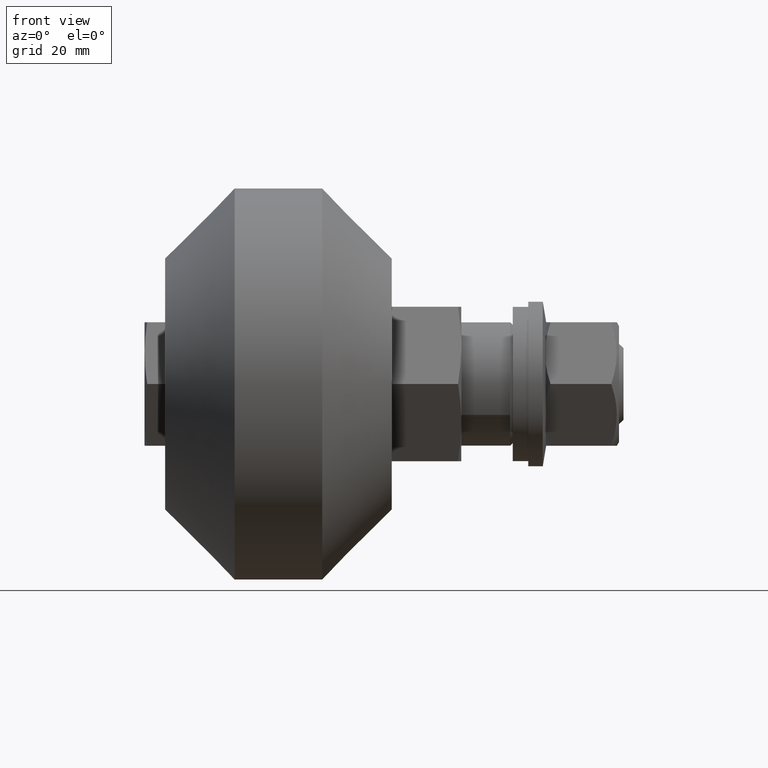
[diagram: clean part render]
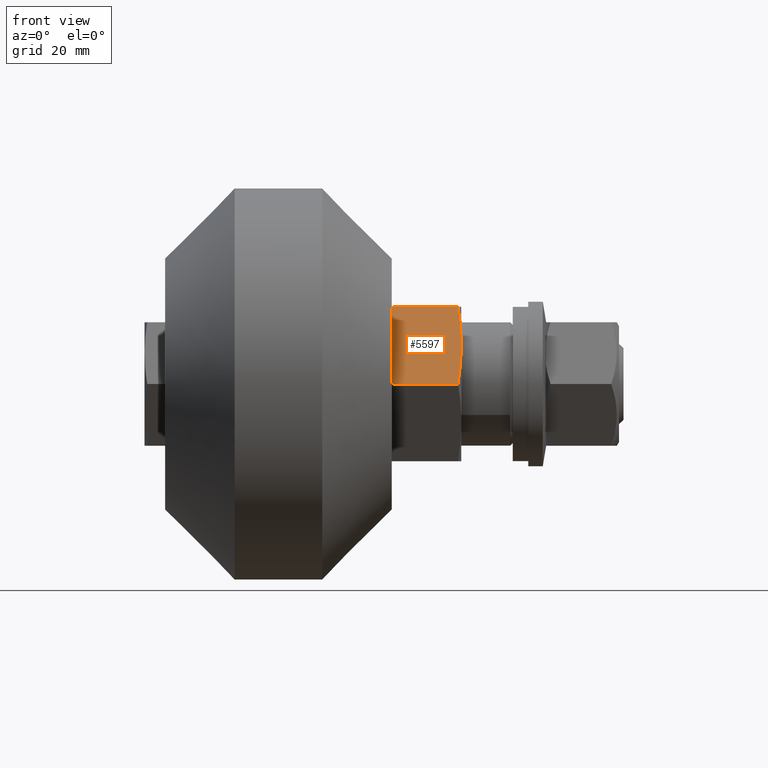
[diagram: same view with one face highlighted and labeled with its STEP entity id]
A machine part, front view. The second image highlights one B-rep face of the part: STEP entity #5597.
In plain terms, the highlighted planar face has unit normal (0, -0.866, 0.5).
Its self-contained STEP definition (entity closure, byte-faithful):
#338=(
BOUNDED_CURVE()
B_SPLINE_CURVE(2,(#9730,#9731,#9732),.UNSPECIFIED.,.F.,.F.)
B_SPLINE_CURVE_WITH_KNOTS((3,3),(0.,0.790327458731382),.UNSPECIFIED.)
CURVE()
GEOMETRIC_REPRESENTATION_ITEM()
RATIONAL_B_SPLINE_CURVE((1.,1.03103791671952,1.))
REPRESENTATION_ITEM('')
);
#340=(
BOUNDED_CURVE()
B_SPLINE_CURVE(2,(#9741,#9742,#9743),.UNSPECIFIED.,.F.,.F.)
B_SPLINE_CURVE_WITH_KNOTS((3,3),(0.,0.790327458731382),.UNSPECIFIED.)
CURVE()
GEOMETRIC_REPRESENTATION_ITEM()
RATIONAL_B_SPLINE_CURVE((1.,1.03103791671954,1.))
REPRESENTATION_ITEM('')
);
#344=(
BOUNDED_CURVE()
B_SPLINE_CURVE(2,(#9763,#9764,#9765),.UNSPECIFIED.,.F.,.F.)
B_SPLINE_CURVE_WITH_KNOTS((3,3),(0.,0.790327458731378),.UNSPECIFIED.)
CURVE()
GEOMETRIC_REPRESENTATION_ITEM()
RATIONAL_B_SPLINE_CURVE((1.,1.03103791671952,1.))
REPRESENTATION_ITEM('')
);
#354=(
BOUNDED_CURVE()
B_SPLINE_CURVE(2,(#9818,#9819,#9820),.UNSPECIFIED.,.F.,.F.)
B_SPLINE_CURVE_WITH_KNOTS((3,3),(0.,0.790327458731378),.UNSPECIFIED.)
CURVE()
GEOMETRIC_REPRESENTATION_ITEM()
RATIONAL_B_SPLINE_CURVE((1.,1.0310379167195,1.))
REPRESENTATION_ITEM('')
);
#570=PLANE('',#6358);
#860=FACE_OUTER_BOUND('',#1175,.T.);
#1175=EDGE_LOOP('',(#5045,#5046,#5047,#5048,#5049,#5050,#5051,#5052));
#1525=LINE('',#9828,#1843);
#1535=LINE('',#9839,#1853);
#1537=LINE('',#9842,#1855);
#1540=LINE('',#9848,#1858);
#1843=VECTOR('',#7799,10.);
#1853=VECTOR('',#7811,10.);
#1855=VECTOR('',#7815,10.);
#1858=VECTOR('',#7824,10.);
#2636=VERTEX_POINT('',#9728);
#2637=VERTEX_POINT('',#9729);
#2639=VERTEX_POINT('',#9739);
#2640=VERTEX_POINT('',#9740);
#2645=VERTEX_POINT('',#9761);
#2646=VERTEX_POINT('',#9762);
#2660=VERTEX_POINT('',#9816);
#2661=VERTEX_POINT('',#9817);
#3437=EDGE_CURVE('',#2636,#2637,#338,.T.);
#3440=EDGE_CURVE('',#2639,#2640,#340,.T.);
#3446=EDGE_CURVE('',#2645,#2646,#344,.T.);
#3461=EDGE_CURVE('',#2660,#2661,#354,.T.);
#3465=EDGE_CURVE('',#2637,#2639,#1525,.T.);
#3475=EDGE_CURVE('',#2661,#2645,#1535,.T.);
#3477=EDGE_CURVE('',#2660,#2640,#1537,.T.);
#3480=EDGE_CURVE('',#2646,#2636,#1540,.T.);
#5045=ORIENTED_EDGE('',*,*,#3440,.T.);
#5046=ORIENTED_EDGE('',*,*,#3477,.F.);
#5047=ORIENTED_EDGE('',*,*,#3461,.T.);
#5048=ORIENTED_EDGE('',*,*,#3475,.T.);
#5049=ORIENTED_EDGE('',*,*,#3446,.T.);
#5050=ORIENTED_EDGE('',*,*,#3480,.T.);
#5051=ORIENTED_EDGE('',*,*,#3437,.T.);
#5052=ORIENTED_EDGE('',*,*,#3465,.T.);
#5597=ADVANCED_FACE('',(#860),#570,.T.);
#6358=AXIS2_PLACEMENT_3D('',#9850,#7826,#7827);
#7799=DIRECTION('',(0.,-0.866025403784439,-0.5));
#7811=DIRECTION('',(0.,0.866025403784439,0.5));
#7815=DIRECTION('',(-1.,0.,0.));
#7824=DIRECTION('',(-1.,0.,0.));
#7826=DIRECTION('center_axis',(0.,-0.5,0.866025403784439));
#7827=DIRECTION('ref_axis',(0.,0.866025403784439,0.5));
#9728=CARTESIAN_POINT('',(2.11628314259158,0.,17.3205080756888));
#9729=CARTESIAN_POINT('',(1.5,-6.82048021450901,13.3827019878395));
#9730=CARTESIAN_POINT('Ctrl Pts',(2.11628314259158,-4.7567155648612E-15,
17.3205080756888));
#9731=CARTESIAN_POINT('Ctrl Pts',(1.55119818764891,-3.65276656993498,15.21158231325));
#9732=CARTESIAN_POINT('Ctrl Pts',(1.5,-6.820480214509,13.3827019878395));
#9739=CARTESIAN_POINT('',(1.5,-8.17951978549099,12.5980601256937));
#9740=CARTESIAN_POINT('',(2.11628314259158,-15.,8.66025403784439));
#9741=CARTESIAN_POINT('Ctrl Pts',(1.5,-8.17951978549099,12.5980601256937));
#9742=CARTESIAN_POINT('Ctrl Pts',(1.55119818764891,-11.347233430065,10.7691798002832));
#9743=CARTESIAN_POINT('Ctrl Pts',(2.11628314259158,-15.,8.6602540378444));
#9761=CARTESIAN_POINT('',(15.5,-6.82048021450901,13.3827019878395));
#9762=CARTESIAN_POINT('',(14.8837168574084,0.,17.3205080756888));
#9763=CARTESIAN_POINT('Ctrl Pts',(15.5,-6.82048021450896,13.3827019878395));
#9764=CARTESIAN_POINT('Ctrl Pts',(15.4488018123511,-3.65276656993496,15.21158231325));
#9765=CARTESIAN_POINT('Ctrl Pts',(14.8837168574084,8.32425223850711E-15,
17.3205080756888));
#9816=CARTESIAN_POINT('',(14.8837168574084,-15.,8.66025403784439));
#9817=CARTESIAN_POINT('',(15.5,-8.17951978549099,12.5980601256937));
#9818=CARTESIAN_POINT('Ctrl Pts',(14.8837168574084,-15.,8.66025403784439));
#9819=CARTESIAN_POINT('Ctrl Pts',(15.4488018123511,-11.347233430065,10.7691798002832));
#9820=CARTESIAN_POINT('Ctrl Pts',(15.5,-8.17951978549104,12.5980601256937));
#9828=CARTESIAN_POINT('',(1.5,-11.25,10.8253175473055));
#9839=CARTESIAN_POINT('',(15.5,-15.,8.66025403784439));
#9842=CARTESIAN_POINT('',(15.5,-15.,8.66025403784439));
#9848=CARTESIAN_POINT('',(15.5,3.88578058618805E-15,17.3205080756888));
#9850=CARTESIAN_POINT('Origin',(15.5,-15.,8.66025403784439));